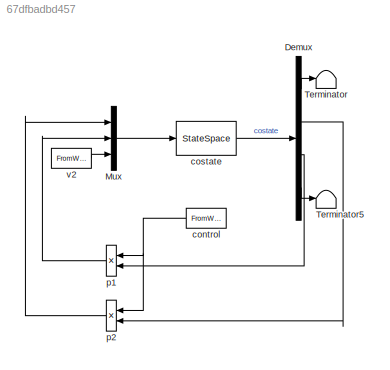
MODEL slx_67dfbadbd457
KIND model
CONFIG AbsTol = auto
CONFIG EnableMultiTasking = off
CONFIG FixedStep = mdl.tStep
CONFIG MaxStep = auto
CONFIG MinStep = auto
CONFIG RelTol = 1e-3
CONFIG SampleTimeConstraint = Unconstrained
CONFIG Solver = ode3
CONFIG SolverName = ode3
CONFIG StartTime = 0.0
CONFIG StopTime = mdl.tEnd
BLOCK [Demux] Demux
  DisplayOption = bar
  Outputs = [2; 1; 1; 4]
  Ports = [1, 4]
BLOCK [Mux] Mux
  DisplayOption = bar
  Inputs = 3
  Ports = [3, 1]
BLOCK [Terminator] Terminator
BLOCK [Terminator] Terminator5
BLOCK [FromWorkspace] control
  Interpolate = off
  OutputAfterFinalValue = Holding final value
  SampleTime = 0
  VariableName = [tu,u]
  ZeroCross = on
BLOCK [StateSpace] costate
  A = ss.Al
  B = ss.Bl
  C = ss.Cl
  D = ss.Dl
  Ports = [1, 1]
  X0 = 0
BLOCK [Product] p1
  InputSameDT = off
  OutDataTypeStr = Inherit: Inherit via internal rule
  Ports = [2, 1]
  RndMeth = Floor
  SaturateOnIntegerOverflow = off
BLOCK [Product] p2
  InputSameDT = off
  OutDataTypeStr = Inherit: Inherit via internal rule
  Ports = [2, 1]
  RndMeth = Floor
  SaturateOnIntegerOverflow = off
BLOCK [FromWorkspace] v2
  Interpolate = off
  OutputAfterFinalValue = Holding final value
  SampleTime = 0
  VariableName = [tu,v2]
  ZeroCross = on
LINE Demux:1 -> Terminator:1
LINE Demux:2 -> p2:2
LINE Demux:3 -> p1:2
LINE Demux:4 -> Terminator5:1
LINE Mux:1 -> costate:1
NET control:1 -> p1:1, p2:1
LINE costate:1 -> Demux:1
LINE p1:1 -> Mux:2
LINE p2:1 -> Mux:1
LINE v2:1 -> Mux:3
note: NET lines group one-source signal fan-out (src -> all destinations, sorted); 1:1 wires keep LINE
